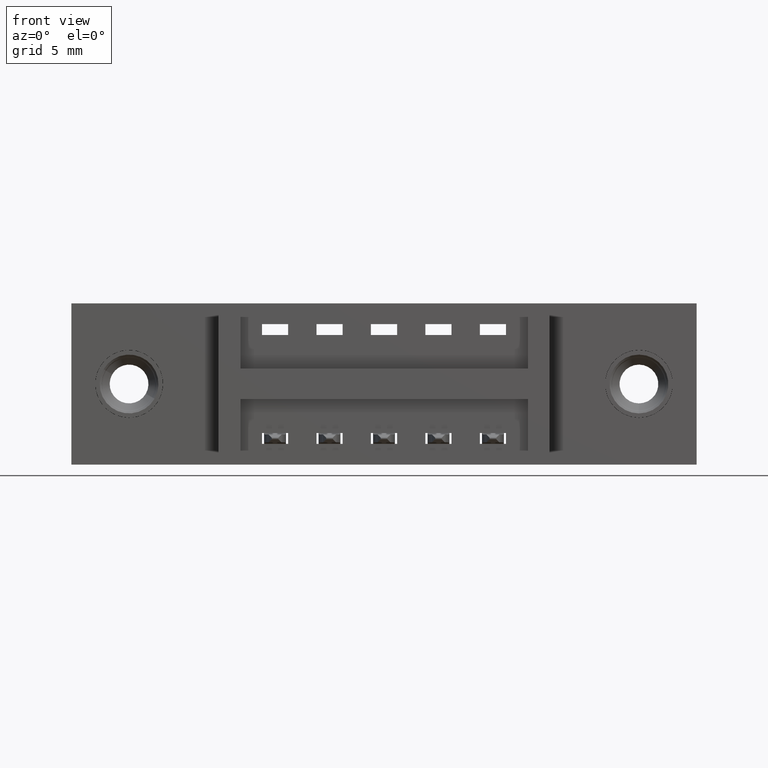
[diagram: clean part render]
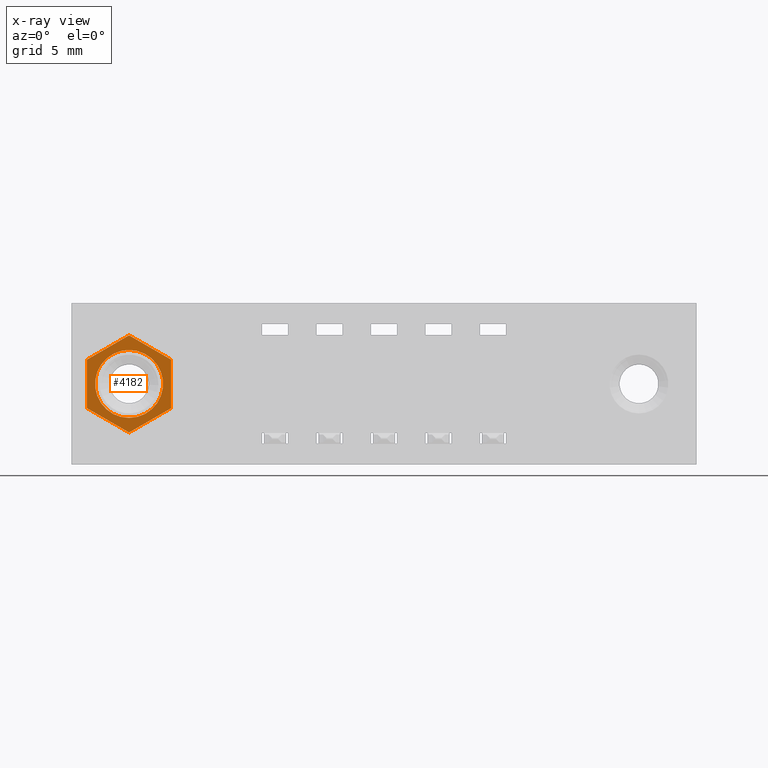
[diagram: x-ray — body ghosted, one internal face saturated and labeled with its STEP entity id]
A machine part, front view, then the same camera in x-ray: the body is ghosted and one INTERNAL B-rep face — a face not visible from any outside direction — is saturated and labeled: STEP entity #4182.
In plain terms, the highlighted planar face has unit normal (0, 1, 0).
Its self-contained STEP definition (entity closure, byte-faithful):
#31 = LINE ( 'NONE', #6776, #1170 ) ;
#97 = VECTOR ( 'NONE', #5427, 39.37007874015748854 ) ;
#112 = LINE ( 'NONE', #5247, #97 ) ;
#395 = EDGE_CURVE ( 'NONE', #4019, #6237, #2965, .T. ) ;
#519 = DIRECTION ( 'NONE',  ( 0.8660254037844385966, 0.0000000000000000000, 0.4999999999999998335 ) ) ;
#589 = VECTOR ( 'NONE', #8813, 39.37007874015748143 ) ;
#666 = FACE_BOUND ( 'NONE', #6217, .T. ) ;
#851 = EDGE_CURVE ( 'NONE', #5664, #8168, #31, .T. ) ;
#1118 = EDGE_CURVE ( 'NONE', #6237, #4019, #2120, .T. ) ;
#1124 = VERTEX_POINT ( 'NONE', #2293 ) ;
#1170 = VECTOR ( 'NONE', #3881, 39.37007874015748143 ) ;
#1218 = EDGE_CURVE ( 'NONE', #8443, #1124, #112, .T. ) ;
#1293 = CARTESIAN_POINT ( 'NONE',  ( 0.1324999999999999789, 0.3779999999999999472, -0.07357139804640235037 ) ) ;
#1334 = ORIENTED_EDGE ( 'NONE', *, *, #7745, .T. ) ;
#1435 = CARTESIAN_POINT ( 'NONE',  ( 0.2289999999999999258, 0.3779999999999999472, -0.1292856990232012782 ) ) ;
#1446 = CARTESIAN_POINT ( 'NONE',  ( 0.1324999999999999789, 0.3779999999999999472, -0.07357139804640235037 ) ) ;
#1465 = DIRECTION ( 'NONE',  ( 0.0000000000000000000, -1.000000000000000000, -0.0000000000000000000 ) ) ;
#1641 = ORIENTED_EDGE ( 'NONE', *, *, #395, .T. ) ;
#1994 = DIRECTION ( 'NONE',  ( 0.0000000000000000000, 0.0000000000000000000, -1.000000000000000000 ) ) ;
#2120 = CIRCLE ( 'NONE', #2884, 0.07799999999999999989 ) ;
#2293 = CARTESIAN_POINT ( 'NONE',  ( 0.1325000000000000622, 0.3779999999999999472, -0.2964286019535979921 ) ) ;
#2385 = LINE ( 'NONE', #7531, #9427 ) ;
#2590 = VECTOR ( 'NONE', #519, 39.37007874015748854 ) ;
#2719 = ORIENTED_EDGE ( 'NONE', *, *, #851, .T. ) ;
#2829 = FACE_OUTER_BOUND ( 'NONE', #4539, .T. ) ;
#2884 = AXIS2_PLACEMENT_3D ( 'NONE', #2994, #1465, #4534 ) ;
#2888 = EDGE_CURVE ( 'NONE', #5639, #8443, #9543, .T. ) ;
#2940 = DIRECTION ( 'NONE',  ( 0.0000000000000000000, -1.000000000000000000, -0.0000000000000000000 ) ) ;
#2965 = CIRCLE ( 'NONE', #6495, 0.07799999999999999989 ) ;
#2994 = CARTESIAN_POINT ( 'NONE',  ( 0.1325000000000002842, 0.3779999999999999472, -0.1849999999999951961 ) ) ;
#3278 = EDGE_CURVE ( 'NONE', #1124, #5664, #2385, .T. ) ;
#3478 = VECTOR ( 'NONE', #1994, 39.37007874015748143 ) ;
#3601 = DIRECTION ( 'NONE',  ( 0.0000000000000000000, -0.0000000000000000000, 1.000000000000000000 ) ) ;
#3741 = ORIENTED_EDGE ( 'NONE', *, *, #1118, .T. ) ;
#3881 = DIRECTION ( 'NONE',  ( 0.0000000000000000000, 0.0000000000000000000, 1.000000000000000000 ) ) ;
#4019 = VERTEX_POINT ( 'NONE', #8903 ) ;
#4143 = CARTESIAN_POINT ( 'NONE',  ( 0.2289999999999999258, 0.3779999999999999472, -0.2407143009767991615 ) ) ;
#4182 = ADVANCED_FACE ( 'NONE', ( #2829, #666 ), #5074, .T. ) ;
#4230 = CARTESIAN_POINT ( 'NONE',  ( 0.03599999999999996952, 0.3779999999999999472, -0.2407143009767990505 ) ) ;
#4534 = DIRECTION ( 'NONE',  ( 0.0000000000000000000, 0.0000000000000000000, 1.000000000000000000 ) ) ;
#4539 = EDGE_LOOP ( 'NONE', ( #5395, #1334, #5646, #6253, #4840, #2719 ) ) ;
#4840 = ORIENTED_EDGE ( 'NONE', *, *, #3278, .T. ) ;
#5074 = PLANE ( 'NONE',  #6432 ) ;
#5241 = VERTEX_POINT ( 'NONE', #5995 ) ;
#5247 = CARTESIAN_POINT ( 'NONE',  ( 0.2289999999999999258, 0.3779999999999999472, -0.2407143009767991615 ) ) ;
#5395 = ORIENTED_EDGE ( 'NONE', *, *, #8038, .T. ) ;
#5427 = DIRECTION ( 'NONE',  ( -0.8660254037844384856, 0.0000000000000000000, -0.5000000000000002220 ) ) ;
#5459 = CARTESIAN_POINT ( 'NONE',  ( 0.2289999999999999258, 0.3779999999999999472, -0.1292856990232012782 ) ) ;
#5639 = VERTEX_POINT ( 'NONE', #5459 ) ;
#5646 = ORIENTED_EDGE ( 'NONE', *, *, #2888, .T. ) ;
#5664 = VERTEX_POINT ( 'NONE', #4230 ) ;
#5803 = CARTESIAN_POINT ( 'NONE',  ( 0.1325000000000002842, 0.3779999999999999472, -0.1849999999999951961 ) ) ;
#5995 = CARTESIAN_POINT ( 'NONE',  ( 0.1324999999999999789, 0.3779999999999999472, -0.07357139804640235037 ) ) ;
#6079 = CARTESIAN_POINT ( 'NONE',  ( 0.1325000000000002842, 0.3779999999999999472, -0.1069999999999951962 ) ) ;
#6217 = EDGE_LOOP ( 'NONE', ( #3741, #1641 ) ) ;
#6230 = CARTESIAN_POINT ( 'NONE',  ( 0.03599999999999996952, 0.3779999999999999472, -0.1292856990232012226 ) ) ;
#6237 = VERTEX_POINT ( 'NONE', #6079 ) ;
#6253 = ORIENTED_EDGE ( 'NONE', *, *, #1218, .T. ) ;
#6432 = AXIS2_PLACEMENT_3D ( 'NONE', #1293, #8739, #3601 ) ;
#6495 = AXIS2_PLACEMENT_3D ( 'NONE', #5803, #2940, #8806 ) ;
#6776 = CARTESIAN_POINT ( 'NONE',  ( 0.03599999999999996952, 0.3779999999999999472, -0.2407143009767990505 ) ) ;
#7531 = CARTESIAN_POINT ( 'NONE',  ( 0.1325000000000000622, 0.3779999999999999472, -0.2964286019535979921 ) ) ;
#7623 = DIRECTION ( 'NONE',  ( -0.8660254037844385966, 0.0000000000000000000, 0.5000000000000000000 ) ) ;
#7745 = EDGE_CURVE ( 'NONE', #5241, #5639, #7932, .T. ) ;
#7932 = LINE ( 'NONE', #1446, #589 ) ;
#8038 = EDGE_CURVE ( 'NONE', #8168, #5241, #8977, .T. ) ;
#8168 = VERTEX_POINT ( 'NONE', #9043 ) ;
#8443 = VERTEX_POINT ( 'NONE', #4143 ) ;
#8739 = DIRECTION ( 'NONE',  ( -0.0000000000000000000, 1.000000000000000000, 0.0000000000000000000 ) ) ;
#8806 = DIRECTION ( 'NONE',  ( 0.0000000000000000000, 0.0000000000000000000, 1.000000000000000000 ) ) ;
#8813 = DIRECTION ( 'NONE',  ( 0.8660254037844383745, 0.0000000000000000000, -0.5000000000000004441 ) ) ;
#8903 = CARTESIAN_POINT ( 'NONE',  ( 0.1325000000000003120, 0.3779999999999999472, -0.2629999999999951821 ) ) ;
#8977 = LINE ( 'NONE', #6230, #2590 ) ;
#9043 = CARTESIAN_POINT ( 'NONE',  ( 0.03599999999999996952, 0.3779999999999999472, -0.1292856990232012226 ) ) ;
#9427 = VECTOR ( 'NONE', #7623, 39.37007874015748854 ) ;
#9543 = LINE ( 'NONE', #1435, #3478 ) ;